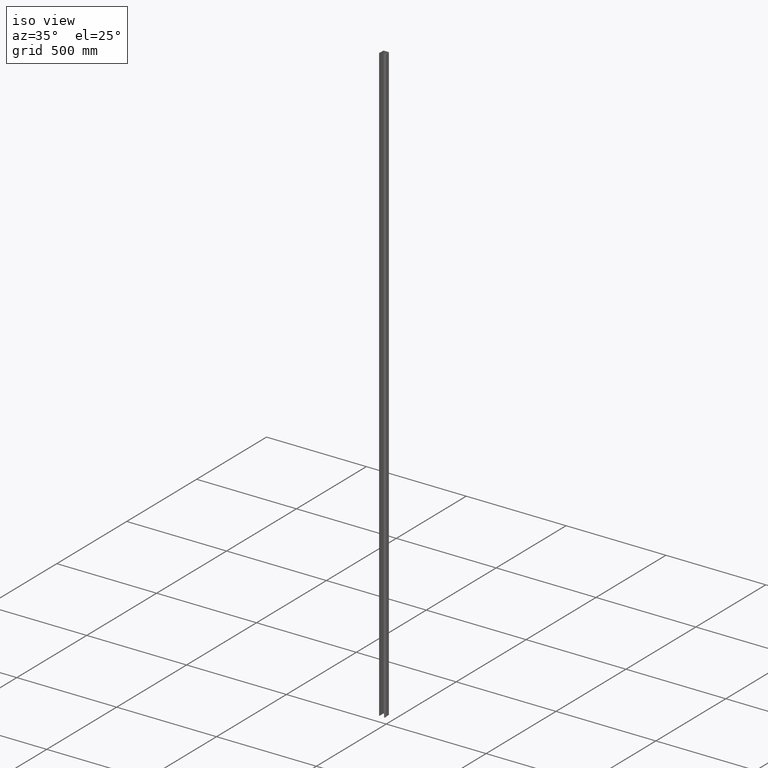
[diagram: clean part render]
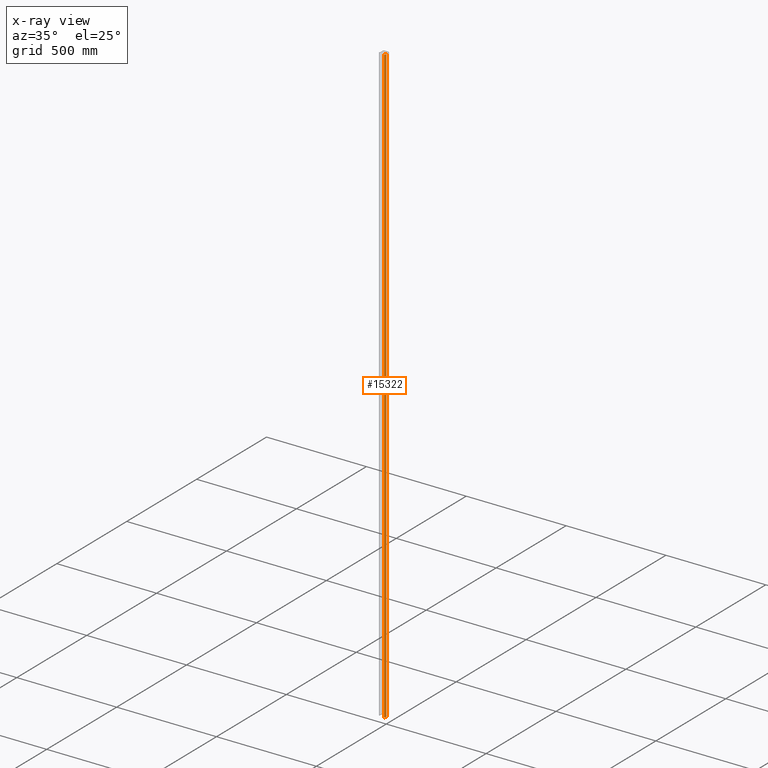
[diagram: x-ray — body ghosted, one internal face saturated and labeled with its STEP entity id]
A machine part, iso view, then the same camera in x-ray: the body is ghosted and one INTERNAL B-rep face — a face not visible from any outside direction — is saturated and labeled: STEP entity #15322.
In plain terms, the highlighted cylindrical surface (edge-blend (fillet) strip) has radius 11 mm, axis along (-0, -0, -1).
Its self-contained STEP definition (entity closure, byte-faithful):
#264 = FACE_OUTER_BOUND ( 'NONE', #16263, .T. ) ;
#522 = LINE ( 'NONE', #6977, #1673 ) ;
#1023 = DIRECTION ( 'NONE',  ( -1.000000000000000000, 0.000000000000000000, 0.000000000000000000 ) ) ;
#1531 = VERTEX_POINT ( 'NONE', #16662 ) ;
#1673 = VECTOR ( 'NONE', #4094, 1000.000000000000000 ) ;
#2131 = CARTESIAN_POINT ( 'NONE',  ( 6.947421033186323314, -21.96756597500041508, 1500.000000000000000 ) ) ;
#2203 = DIRECTION ( 'NONE',  ( -0.000000000000000000, -0.000000000000000000, -1.000000000000000000 ) ) ;
#3092 = CIRCLE ( 'NONE', #7213, 10.99999999999999645 ) ;
#4032 = CARTESIAN_POINT ( 'NONE',  ( 17.47869423651494003, -25.14440162023807446, 1500.000000000000000 ) ) ;
#4094 = DIRECTION ( 'NONE',  ( -0.000000000000000000, -0.000000000000000000, -1.000000000000000000 ) ) ;
#4845 = EDGE_CURVE ( 'NONE', #1531, #12770, #17083, .T. ) ;
#5175 = CARTESIAN_POINT ( 'NONE',  ( 17.47869423651494003, -25.14440162023807446, -1500.000000000000000 ) ) ;
#5188 = VERTEX_POINT ( 'NONE', #4032 ) ;
#6020 = AXIS2_PLACEMENT_3D ( 'NONE', #2131, #2203, #9348 ) ;
#6250 = ORIENTED_EDGE ( 'NONE', *, *, #4845, .T. ) ;
#6275 = DIRECTION ( 'NONE',  ( -0.000000000000000000, -0.000000000000000000, -1.000000000000000000 ) ) ;
#6380 = CARTESIAN_POINT ( 'NONE',  ( 11.55964661746731714, -31.95392542976188111, -1500.000000000000000 ) ) ;
#6527 = EDGE_CURVE ( 'NONE', #1531, #5188, #3092, .T. ) ;
#6977 = CARTESIAN_POINT ( 'NONE',  ( 17.47869423651494003, -25.14440162023807446, 1500.000000000000000 ) ) ;
#7213 = AXIS2_PLACEMENT_3D ( 'NONE', #14572, #16009, #18949 ) ;
#7260 = ORIENTED_EDGE ( 'NONE', *, *, #8991, .F. ) ;
#8991 = EDGE_CURVE ( 'NONE', #5188, #12694, #522, .T. ) ;
#9348 = DIRECTION ( 'NONE',  ( -1.000000000000000000, 0.000000000000000000, 0.000000000000000000 ) ) ;
#12346 = ORIENTED_EDGE ( 'NONE', *, *, #6527, .F. ) ;
#12694 = VERTEX_POINT ( 'NONE', #5175 ) ;
#12770 = VERTEX_POINT ( 'NONE', #6380 ) ;
#12929 = AXIS2_PLACEMENT_3D ( 'NONE', #17060, #14037, #1023 ) ;
#14037 = DIRECTION ( 'NONE',  ( 0.000000000000000000, 0.000000000000000000, 1.000000000000000000 ) ) ;
#14572 = CARTESIAN_POINT ( 'NONE',  ( 6.947421033186323314, -21.96756597500041508, 1500.000000000000000 ) ) ;
#14736 = CIRCLE ( 'NONE', #12929, 10.99999999999999645 ) ;
#14950 = CYLINDRICAL_SURFACE ( 'NONE', #6020, 10.99999999999999645 ) ;
#15038 = ORIENTED_EDGE ( 'NONE', *, *, #15642, .T. ) ;
#15322 = ADVANCED_FACE ( 'NONE', ( #264 ), #14950, .T. ) ;
#15336 = CARTESIAN_POINT ( 'NONE',  ( 11.55964661746731714, -31.95392542976188111, 1500.000000000000000 ) ) ;
#15642 = EDGE_CURVE ( 'NONE', #12770, #12694, #14736, .T. ) ;
#16009 = DIRECTION ( 'NONE',  ( 0.000000000000000000, 0.000000000000000000, 1.000000000000000000 ) ) ;
#16263 = EDGE_LOOP ( 'NONE', ( #15038, #7260, #12346, #6250 ) ) ;
#16662 = CARTESIAN_POINT ( 'NONE',  ( 11.55964661746731714, -31.95392542976188111, 1500.000000000000000 ) ) ;
#17060 = CARTESIAN_POINT ( 'NONE',  ( 6.947421033186323314, -21.96756597500041508, -1500.000000000000000 ) ) ;
#17083 = LINE ( 'NONE', #15336, #18459 ) ;
#18459 = VECTOR ( 'NONE', #6275, 1000.000000000000000 ) ;
#18949 = DIRECTION ( 'NONE',  ( -1.000000000000000000, 0.000000000000000000, 0.000000000000000000 ) ) ;